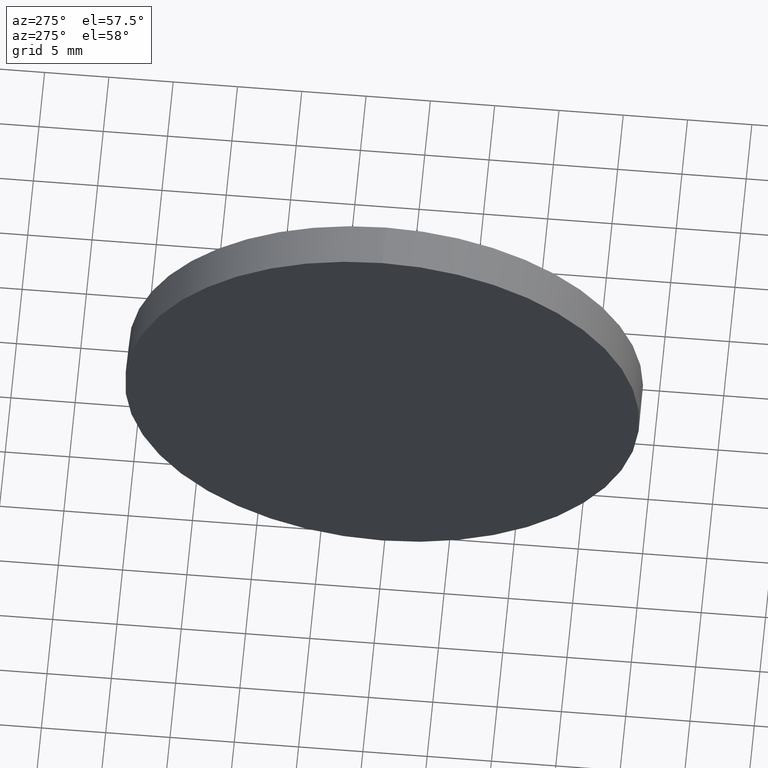
[diagram: clean part render]
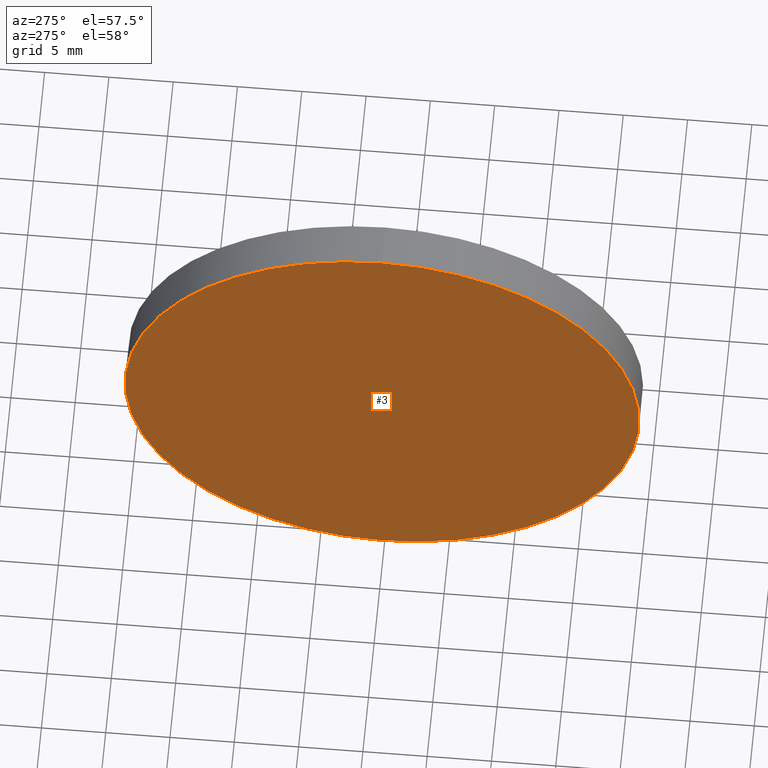
[diagram: same view with one face highlighted and labeled with its STEP entity id]
A machine part, auxiliary view. The second image highlights one B-rep face of the part: STEP entity #3.
In plain terms, the highlighted planar face has unit normal (1, 0, 0).
Its self-contained STEP definition (entity closure, byte-faithful):
#3 = ADVANCED_FACE ( 'NONE', ( #120 ), #94, .F. ) ;
#8 = DIRECTION ( 'NONE',  ( -1.000000000000000000, -0.0000000000000000000, -0.0000000000000000000 ) ) ;
#20 = CARTESIAN_POINT ( 'NONE',  ( 113.9119316741596200, 65.15563045701519200, 0.0000000000000000000 ) ) ;
#33 = EDGE_CURVE ( 'NONE', #164, #170, #87, .T. ) ;
#43 = DIRECTION ( 'NONE',  ( 0.0000000000000000000, 0.0000000000000000000, 1.000000000000000000 ) ) ;
#61 = AXIS2_PLACEMENT_3D ( 'NONE', #169, #8, #157 ) ;
#70 = CARTESIAN_POINT ( 'NONE',  ( 113.9119316741596200, 65.15563045701519200, -20.00000000000000400 ) ) ;
#72 = EDGE_LOOP ( 'NONE', ( #95, #125 ) ) ;
#87 = CIRCLE ( 'NONE', #186, 20.00000000000000400 ) ;
#94 = PLANE ( 'NONE',  #106 ) ;
#95 = ORIENTED_EDGE ( 'NONE', *, *, #33, .T. ) ;
#106 = AXIS2_PLACEMENT_3D ( 'NONE', #20, #154, #122 ) ;
#107 = CARTESIAN_POINT ( 'NONE',  ( 113.9119316741596200, 65.15563045701519200, 0.0000000000000000000 ) ) ;
#119 = DIRECTION ( 'NONE',  ( -1.000000000000000000, -0.0000000000000000000, -0.0000000000000000000 ) ) ;
#120 = FACE_OUTER_BOUND ( 'NONE', #72, .T. ) ;
#122 = DIRECTION ( 'NONE',  ( 0.0000000000000000000, 0.0000000000000000000, -1.000000000000000000 ) ) ;
#125 = ORIENTED_EDGE ( 'NONE', *, *, #163, .T. ) ;
#128 = CIRCLE ( 'NONE', #61, 20.00000000000000400 ) ;
#154 = DIRECTION ( 'NONE',  ( 1.000000000000000000, 0.0000000000000000000, 0.0000000000000000000 ) ) ;
#157 = DIRECTION ( 'NONE',  ( 0.0000000000000000000, 0.0000000000000000000, 1.000000000000000000 ) ) ;
#158 = CARTESIAN_POINT ( 'NONE',  ( 113.9119316741596200, 65.15563045701519200, 20.00000000000000400 ) ) ;
#163 = EDGE_CURVE ( 'NONE', #170, #164, #128, .T. ) ;
#164 = VERTEX_POINT ( 'NONE', #158 ) ;
#169 = CARTESIAN_POINT ( 'NONE',  ( 113.9119316741596200, 65.15563045701519200, 0.0000000000000000000 ) ) ;
#170 = VERTEX_POINT ( 'NONE', #70 ) ;
#186 = AXIS2_PLACEMENT_3D ( 'NONE', #107, #119, #43 ) ;